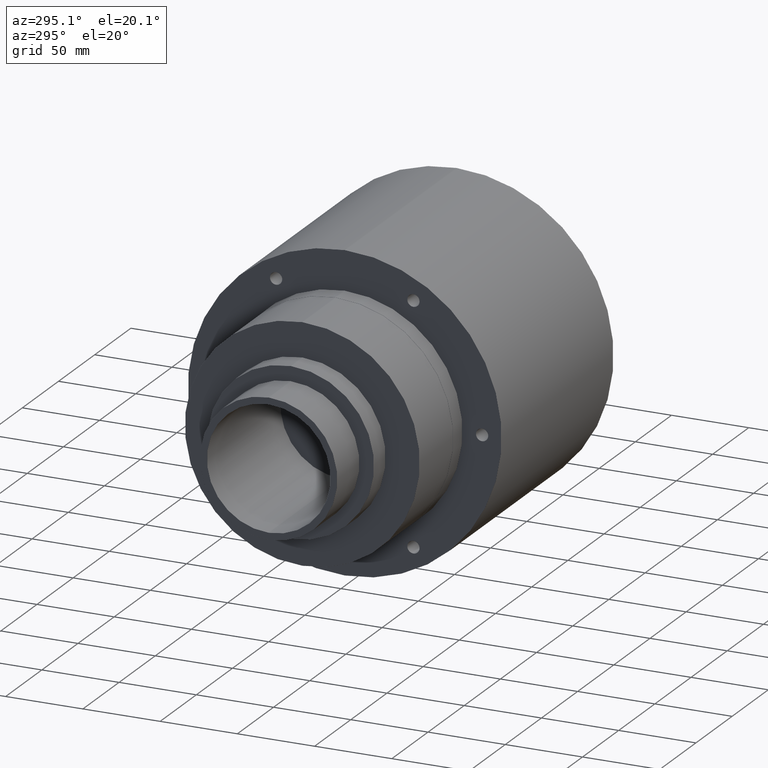
[diagram: clean part render]
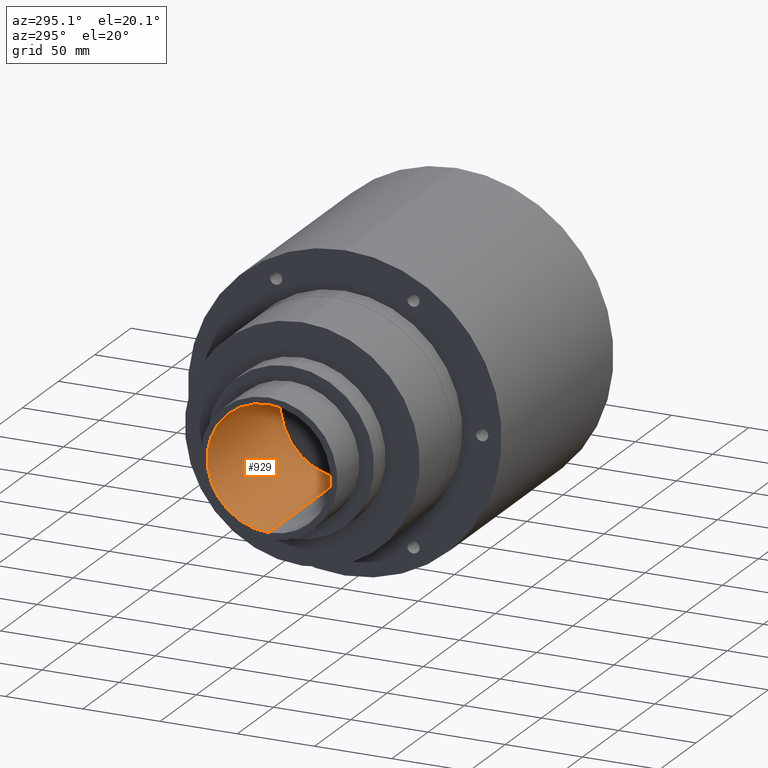
[diagram: same view with one face highlighted and labeled with its STEP entity id]
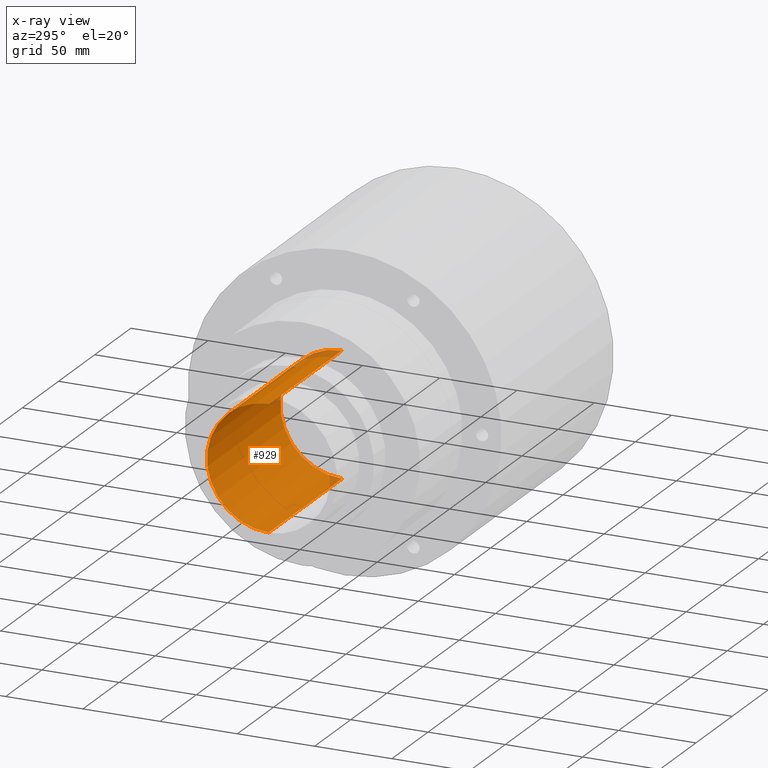
[diagram: x-ray of the same camera — body ghosted, the highlighted face saturated]
A machine part, auxiliary view. The second image highlights one B-rep face of the part: STEP entity #929.
The next image is the same camera in x-ray: the body ghosted, the highlighted face saturated — about 3% of this face is hidden behind the body in this view.
In plain terms, the highlighted cylindrical surface (partial cylindrical patch) has radius 40.005 mm, axis along (-1, -0, -0).
Its self-contained STEP definition (entity closure, byte-faithful):
#5 = EDGE_CURVE ( 'NONE', #580, #508, #269, .T. ) ;
#7 = EDGE_CURVE ( 'NONE', #581, #507, #1330, .T. ) ;
#239 = EDGE_CURVE ( 'NONE', #581, #580, #1518, .T. ) ;
#269 = LINE ( 'NONE', #598, #1327 ) ;
#369 = EDGE_LOOP ( 'NONE', ( #1145, #1146, #1148, #1150 ) ) ;
#507 = VERTEX_POINT ( 'NONE', #1941 ) ;
#508 = VERTEX_POINT ( 'NONE', #1942 ) ;
#580 = VERTEX_POINT ( 'NONE', #2014 ) ;
#581 = VERTEX_POINT ( 'NONE', #2015 ) ;
#598 = CARTESIAN_POINT ( 'NONE',  ( 4.000000000000000000, 1.928818708657081600E-016, -1.575000000000000200 ) ) ;
#600 = CARTESIAN_POINT ( 'NONE',  ( 4.000000000000000000, 0.0000000000000000000, 1.575000000000000200 ) ) ;
#601 = DIRECTION ( 'NONE',  ( -1.000000000000000000, -0.0000000000000000000, -0.0000000000000000000 ) ) ;
#606 = DIRECTION ( 'NONE',  ( -1.000000000000000000, -0.0000000000000000000, -0.0000000000000000000 ) ) ;
#859 = EDGE_CURVE ( 'NONE', #507, #508, #1568, .T. ) ;
#929 = ADVANCED_FACE ( 'NONE', ( #2570 ), #2573, .F. ) ;
#1145 = ORIENTED_EDGE ( 'NONE', *, *, #5, .F. ) ;
#1146 = ORIENTED_EDGE ( 'NONE', *, *, #239, .F. ) ;
#1148 = ORIENTED_EDGE ( 'NONE', *, *, #7, .T. ) ;
#1150 = ORIENTED_EDGE ( 'NONE', *, *, #859, .T. ) ;
#1327 = VECTOR ( 'NONE', #601, 39.37007874015748100 ) ;
#1328 = VECTOR ( 'NONE', #606, 39.37007874015748100 ) ;
#1330 = LINE ( 'NONE', #600, #1328 ) ;
#1518 = CIRCLE ( 'NONE', #1630, 1.575000000000000200 ) ;
#1568 = CIRCLE ( 'NONE', #1674, 1.575000000000000200 ) ;
#1630 = AXIS2_PLACEMENT_3D ( 'NONE', #1869, #1876, #1877 ) ;
#1674 = AXIS2_PLACEMENT_3D ( 'NONE', #2143, #2144, #2145 ) ;
#1747 = AXIS2_PLACEMENT_3D ( 'NONE', #2357, #2356, #2354 ) ;
#1869 = CARTESIAN_POINT ( 'NONE',  ( 4.000000000000000000, 0.0000000000000000000, 0.0000000000000000000 ) ) ;
#1876 = DIRECTION ( 'NONE',  ( -1.000000000000000000, 0.0000000000000000000, 0.0000000000000000000 ) ) ;
#1877 = DIRECTION ( 'NONE',  ( 0.0000000000000000000, 0.0000000000000000000, 1.000000000000000000 ) ) ;
#1941 = CARTESIAN_POINT ( 'NONE',  ( 0.005000000000000083400, 0.0000000000000000000, 1.575000000000000200 ) ) ;
#1942 = CARTESIAN_POINT ( 'NONE',  ( 0.005000000000000083400, 1.928818708657081600E-016, -1.575000000000000200 ) ) ;
#2014 = CARTESIAN_POINT ( 'NONE',  ( 4.000000000000000000, 1.928818708657081600E-016, -1.575000000000000200 ) ) ;
#2015 = CARTESIAN_POINT ( 'NONE',  ( 4.000000000000000000, 0.0000000000000000000, 1.575000000000000200 ) ) ;
#2143 = CARTESIAN_POINT ( 'NONE',  ( 0.005000000000000083400, 0.0000000000000000000, 0.0000000000000000000 ) ) ;
#2144 = DIRECTION ( 'NONE',  ( -1.000000000000000000, -0.0000000000000000000, -0.0000000000000000000 ) ) ;
#2145 = DIRECTION ( 'NONE',  ( 0.0000000000000000000, 0.0000000000000000000, -1.000000000000000000 ) ) ;
#2354 = DIRECTION ( 'NONE',  ( 0.0000000000000000000, 0.0000000000000000000, 1.000000000000000000 ) ) ;
#2356 = DIRECTION ( 'NONE',  ( -1.000000000000000000, -0.0000000000000000000, -0.0000000000000000000 ) ) ;
#2357 = CARTESIAN_POINT ( 'NONE',  ( 4.000000000000000000, 0.0000000000000000000, 0.0000000000000000000 ) ) ;
#2570 = FACE_OUTER_BOUND ( 'NONE', #369, .T. ) ;
#2573 = CYLINDRICAL_SURFACE ( 'NONE', #1747, 1.575000000000000200 ) ;